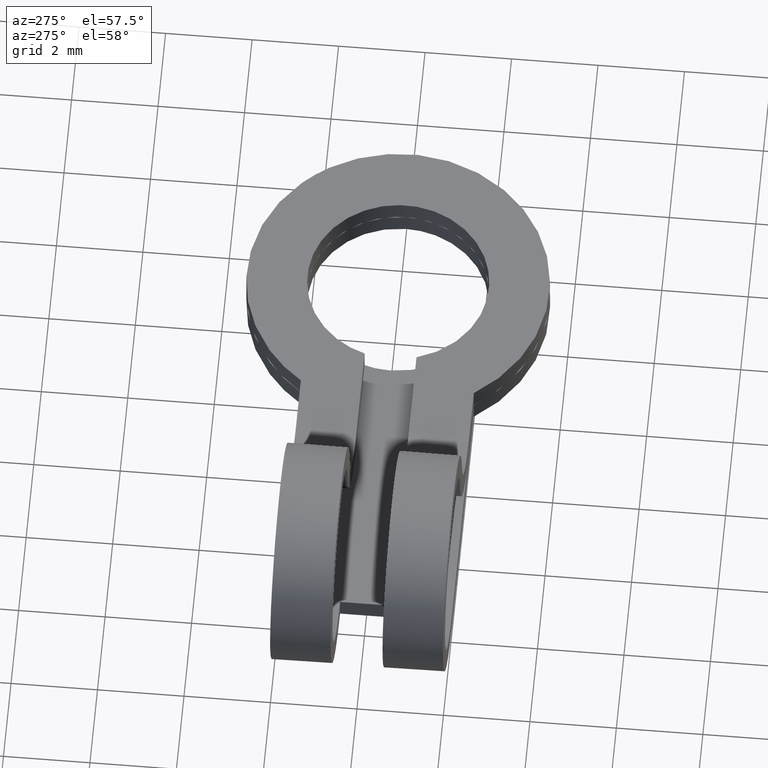
[diagram: clean part render]
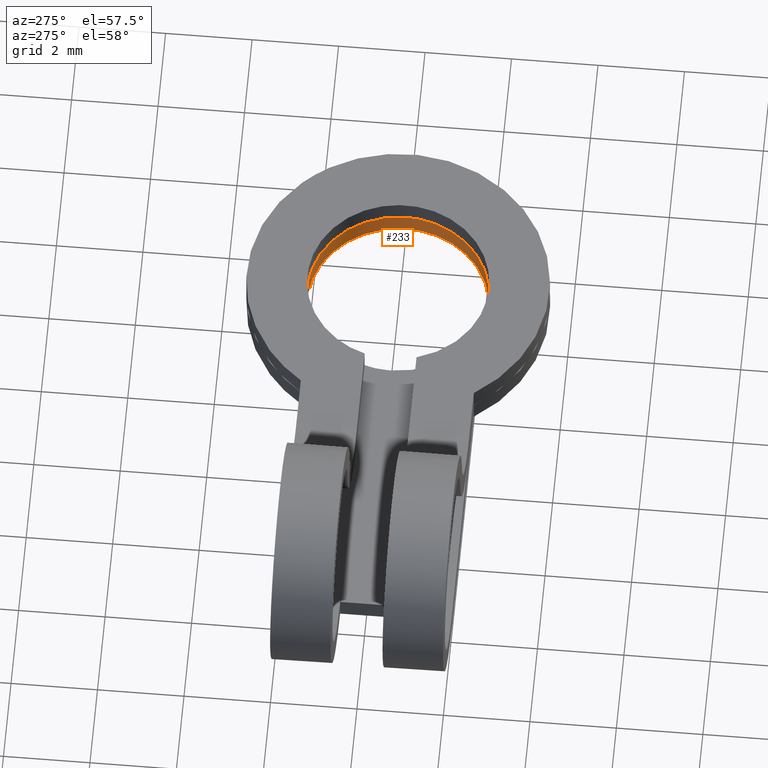
[diagram: same view with one face highlighted and labeled with its STEP entity id]
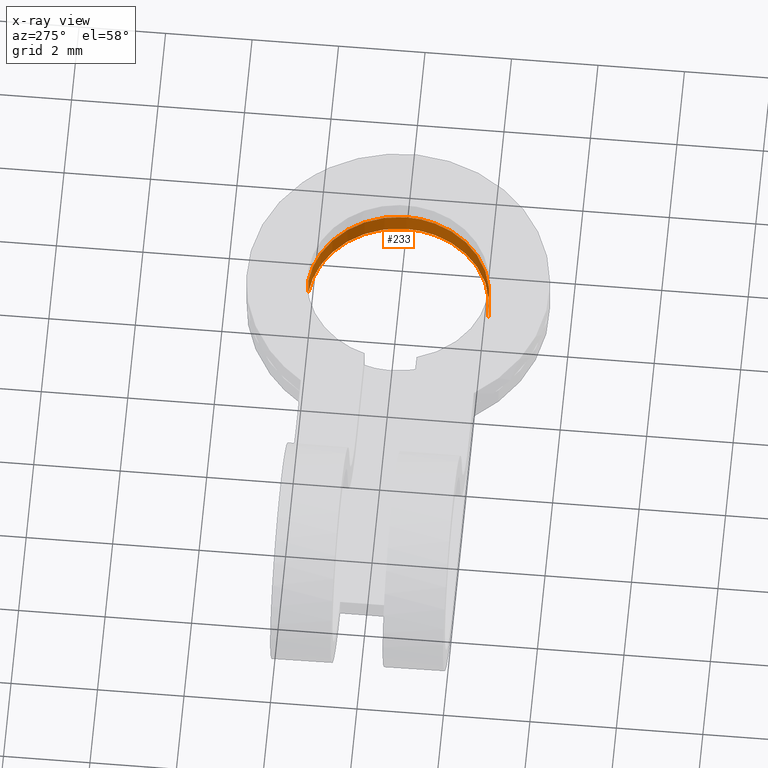
[diagram: x-ray of the same camera — body ghosted, the highlighted face saturated]
A machine part, auxiliary view. The second image highlights one B-rep face of the part: STEP entity #233.
The next image is the same camera in x-ray: the body ghosted, the highlighted face saturated — about 0% of this face is hidden behind the body in this view.
In plain terms, the highlighted face is a freeform B-spline surface patch.
Its self-contained STEP definition (entity closure, byte-faithful):
#68=CARTESIAN_POINT('',(8.735239515111395,-2.093526685429664,-2.500000000000134));
#69=VERTEX_POINT('',#68);
#83=CARTESIAN_POINT('',(9.064760484888607,2.093526685429664,-2.500000000000134));
#84=VERTEX_POINT('',#83);
#100=CARTESIAN_POINT('',(9.064760529551007,2.093526681914811,-2.0));
#101=VERTEX_POINT('',#100);
#102=CARTESIAN_POINT('',(9.064760529551007,2.093526681914811,-2.0));
#103=CARTESIAN_POINT('',(9.064760484888607,2.093526685429664,-2.500000000000134));
#104=QUASI_UNIFORM_CURVE('',1,(#102,#103),.UNSPECIFIED.,.F.,.U.);
#105=EDGE_CURVE('',#101,#84,#104,.T.);
#124=CARTESIAN_POINT('',(8.735239470448992,-2.093526681914811,-2.0));
#125=VERTEX_POINT('',#124);
#139=CARTESIAN_POINT('',(8.735239470448992,-2.093526681914811,-2.0));
#140=CARTESIAN_POINT('',(8.735239515111395,-2.093526685429664,-2.500000000000134));
#141=QUASI_UNIFORM_CURVE('',1,(#139,#140),.UNSPECIFIED.,.F.,.U.);
#142=EDGE_CURVE('',#125,#69,#141,.T.);
#147=CARTESIAN_POINT('',(9.035326016401751,2.095843228345340,-1.987500000000002));
#148=CARTESIAN_POINT('',(9.050002068304801,2.094688198011122,-1.987500000000002));
#149=CARTESIAN_POINT('',(11.158290501868045,1.928762299811092,-1.987500000000001));
#150=CARTESIAN_POINT('',(10.993526400839571,-0.164764101028476,-1.987500000000001));
#151=CARTESIAN_POINT('',(10.828762299811093,-2.258290501868045,-1.987500000000001));
#152=CARTESIAN_POINT('',(8.720477439095498,-2.092364884857223,-1.987500000000002));
#153=CARTESIAN_POINT('',(8.705804918485907,-2.091210132441828,-1.987500000000002));
#154=CARTESIAN_POINT('',(9.035326016401751,2.095843228345340,-2.512812499999945));
#155=CARTESIAN_POINT('',(9.050002068304801,2.094688198011122,-2.512812499999944));
#156=CARTESIAN_POINT('',(11.158290501868045,1.928762299811092,-2.512812499999944));
#157=CARTESIAN_POINT('',(10.993526400839571,-0.164764101028476,-2.512812499999944));
#158=CARTESIAN_POINT('',(10.828762299811093,-2.258290501868045,-2.512812499999944));
#159=CARTESIAN_POINT('',(8.720477439095498,-2.092364884857223,-2.512812499999944));
#160=CARTESIAN_POINT('',(8.705804918485907,-2.091210132441828,-2.512812499999945));
#168=(BOUNDED_SURFACE()B_SPLINE_SURFACE(2,1,((#147,#154),(#148,#155),(#149,#156),(#150,#157),(#151,#158),(#152,#159),(#153,#160)),.UNSPECIFIED.,.F.,.F.,.U.)B_SPLINE_SURFACE_WITH_KNOTS((3,1,2,1,3),(2,2),(0.0,0.034798188395203,3.514192112329202,6.993586036263201,7.028375777804640),(0.0,1.0),.UNSPECIFIED.)GEOMETRIC_REPRESENTATION_ITEM()RATIONAL_B_SPLINE_SURFACE(((1.005858579758870,1.005858579758870),(1.002929289879435,1.002929289879435),(0.707106781186548,0.707106781186548),(1.0,1.0),(0.707106781186548,0.707106781186548),(1.002928578828533,1.002928578828533),(1.005857157657066,1.005857157657066)))REPRESENTATION_ITEM('')SURFACE());
#169=CARTESIAN_POINT('',(11.0,0.0,-2.499999999999945));
#170=VERTEX_POINT('',#169);
#171=CARTESIAN_POINT('',(8.735239515111395,-2.093526685429664,-2.500000000000134));
#172=CARTESIAN_POINT('',(8.817492591744204,-2.100000000000001,-2.499999999999945));
#173=CARTESIAN_POINT('',(8.900000000000000,-2.100000000000000,-2.499999999999945));
#174=CARTESIAN_POINT('',(11.0,-2.100000000000000,-2.499999999999945));
#175=CARTESIAN_POINT('',(11.0,0.0,-2.499999999999945));
#183=(BOUNDED_CURVE()B_SPLINE_CURVE(2,(#171,#172,#173,#174,#175),.UNSPECIFIED.,.F.,.U.)B_SPLINE_CURVE_WITH_KNOTS((3,2,3),(0.236331596733665,0.250000000000000,0.500000000000000),.UNSPECIFIED.)CURVE()GEOMETRIC_REPRESENTATION_ITEM()RATIONAL_B_SPLINE_CURVE((0.969723974112622,0.983986469485131,1.0,0.707106781186548,1.0))REPRESENTATION_ITEM(''));
#184=EDGE_CURVE('',#69,#170,#183,.T.);
#185=ORIENTED_EDGE('',*,*,#184,.F.);
#186=ORIENTED_EDGE('',*,*,#142,.F.);
#187=CARTESIAN_POINT('',(11.0,0.0,-2.0));
#188=VERTEX_POINT('',#187);
#189=CARTESIAN_POINT('',(8.735239470448992,-2.093526681914810,-2.000000000000000));
#190=CARTESIAN_POINT('',(8.817492569309374,-2.100000000000000,-2.0));
#191=CARTESIAN_POINT('',(8.900000000000000,-2.100000000000000,-2.0));
#192=CARTESIAN_POINT('',(11.0,-2.100000000000000,-2.000000000000000));
#193=CARTESIAN_POINT('',(11.0,0.0,-2.0));
#201=(BOUNDED_CURVE()B_SPLINE_CURVE(2,(#189,#190,#191,#192,#193),.UNSPECIFIED.,.F.,.U.)B_SPLINE_CURVE_WITH_KNOTS((3,2,3),(0.236331593076566,0.250000000000000,0.500000000000000),.UNSPECIFIED.)CURVE()GEOMETRIC_REPRESENTATION_ITEM()RATIONAL_B_SPLINE_CURVE((0.969723966480516,0.983986465200574,1.0,0.707106781186548,1.0))REPRESENTATION_ITEM(''));
#202=EDGE_CURVE('',#125,#188,#201,.T.);
#203=ORIENTED_EDGE('',*,*,#202,.T.);
#204=CARTESIAN_POINT('',(11.0,0.0,-2.0));
#205=CARTESIAN_POINT('',(11.000000000000002,1.941223354373202,-2.000000000000000));
#206=CARTESIAN_POINT('',(9.064760529551007,2.093526681914811,-2.000000000000000));
#214=(BOUNDED_CURVE()B_SPLINE_CURVE(2,(#204,#205,#206),.UNSPECIFIED.,.F.,.U.)B_SPLINE_CURVE_WITH_KNOTS((3,3),(0.500000000000000,0.736331593076566),.UNSPECIFIED.)CURVE()GEOMETRIC_REPRESENTATION_ITEM()RATIONAL_B_SPLINE_CURVE((1.0,0.723120315985974,0.969723966480516))REPRESENTATION_ITEM(''));
#215=EDGE_CURVE('',#188,#101,#214,.T.);
#216=ORIENTED_EDGE('',*,*,#215,.T.);
#217=ORIENTED_EDGE('',*,*,#105,.T.);
#218=CARTESIAN_POINT('',(11.0,0.0,-2.499999999999945));
#219=CARTESIAN_POINT('',(11.0,1.941223395914475,-2.499999999999945));
#220=CARTESIAN_POINT('',(9.064760484888607,2.093526685429664,-2.500000000000134));
#228=(BOUNDED_CURVE()B_SPLINE_CURVE(2,(#218,#219,#220),.UNSPECIFIED.,.F.,.U.)B_SPLINE_CURVE_WITH_KNOTS((3,3),(0.500000000000000,0.736331596733665),.UNSPECIFIED.)CURVE()GEOMETRIC_REPRESENTATION_ITEM()RATIONAL_B_SPLINE_CURVE((1.0,0.723120311701417,0.969723974112622))REPRESENTATION_ITEM(''));
#229=EDGE_CURVE('',#170,#84,#228,.T.);
#230=ORIENTED_EDGE('',*,*,#229,.F.);
#231=EDGE_LOOP('',(#185,#186,#203,#216,#217,#230));
#232=FACE_OUTER_BOUND('',#231,.T.);
#233=ADVANCED_FACE('',(#232),#168,.F.);